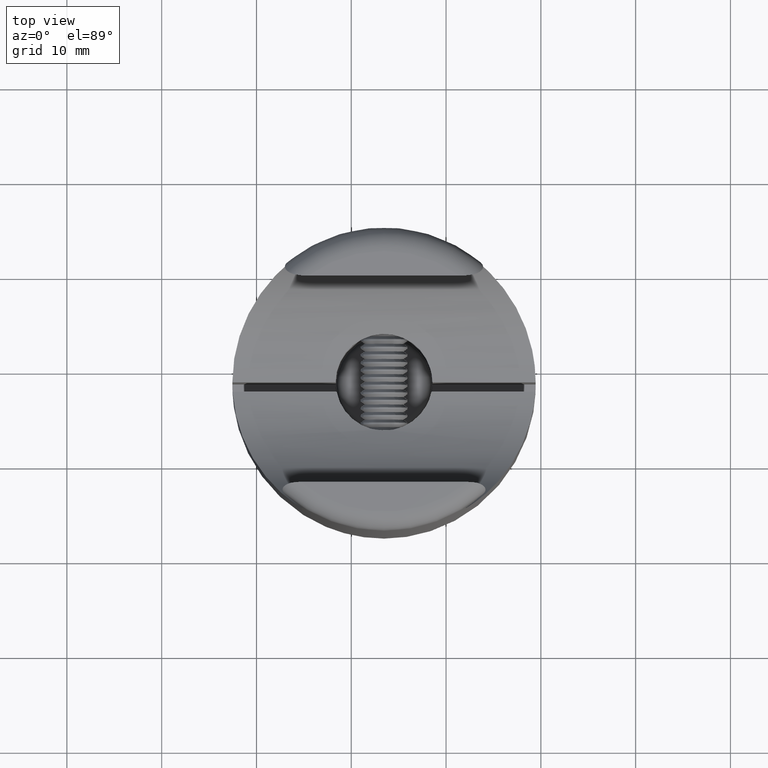
[diagram: clean part render]
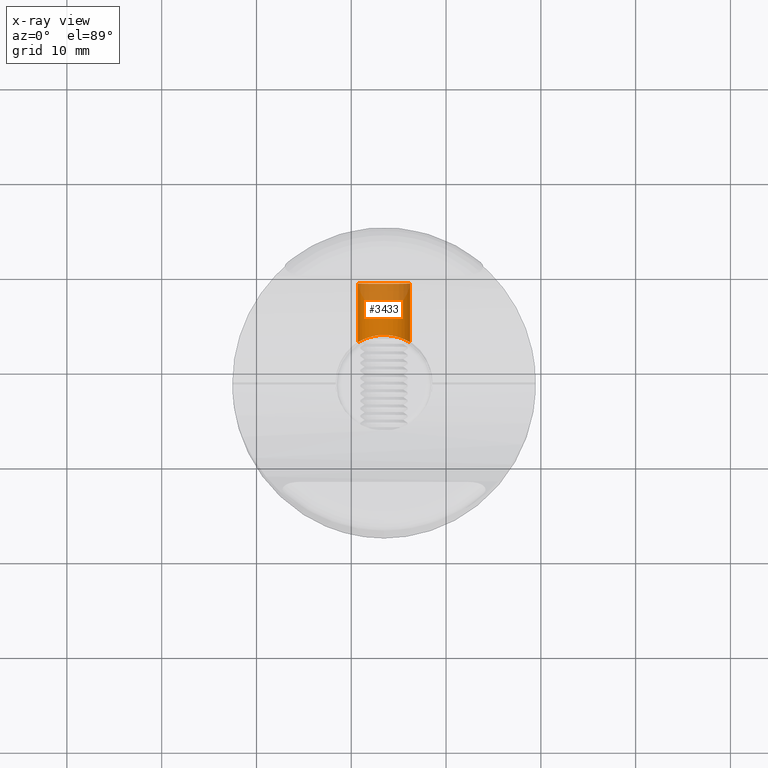
[diagram: x-ray — body ghosted, one internal face saturated and labeled with its STEP entity id]
A machine part, top view, then the same camera in x-ray: the body is ghosted and one INTERNAL B-rep face — a face not visible from any outside direction — is saturated and labeled: STEP entity #3433.
In plain terms, the highlighted cylindrical surface (edge-blend (fillet) strip) has radius 2.75 mm, axis along (-0, 1, 0).
Its self-contained STEP definition (entity closure, byte-faithful):
#150 = LINE ( 'NONE', #25176, #12335 ) ;
#473 = EDGE_CURVE ( 'NONE', #3907, #27079, #150, .T. ) ;
#1273 = ORIENTED_EDGE ( 'NONE', *, *, #20193, .T. ) ;
#2386 = CYLINDRICAL_SURFACE ( 'NONE', #4747, 2.750000000000000000 ) ;
#2676 = DIRECTION ( 'NONE',  ( -1.000000000000000000, -7.755437885725648845E-18, 0.000000000000000000 ) ) ;
#2739 = FACE_OUTER_BOUND ( 'NONE', #13343, .T. ) ;
#3358 = CARTESIAN_POINT ( 'NONE',  ( -1.683756366518901926, 4.816528503712306453, 7.818449940749074401 ) ) ;
#3433 = ADVANCED_FACE ( 'NONE', ( #2739 ), #2386, .F. ) ;
#3649 = ORIENTED_EDGE ( 'NONE', *, *, #21411, .F. ) ;
#3713 = CARTESIAN_POINT ( 'NONE',  ( 1.824306715840330329, 4.764447448298401611, 7.934723071478177125 ) ) ;
#3721 = CIRCLE ( 'NONE', #25961, 2.750000000000000000 ) ;
#3907 = VERTEX_POINT ( 'NONE', #20551 ) ;
#4090 = CARTESIAN_POINT ( 'NONE',  ( 0.7246548701174766460, 5.051447989332547905, 7.340946434861360004 ) ) ;
#4373 = CARTESIAN_POINT ( 'NONE',  ( -2.750000000000000000, 10.50000000000000000, 10.00000000000000178 ) ) ;
#4747 = AXIS2_PLACEMENT_3D ( 'NONE', #26480, #15637, #2676 ) ;
#5642 = CARTESIAN_POINT ( 'NONE',  ( -1.821678256465000478, 4.765454549843489040, 7.932414733163885678 ) ) ;
#7077 = LINE ( 'NONE', #10104, #15541 ) ;
#7624 = CARTESIAN_POINT ( 'NONE',  ( -2.749999999999999556, 4.295055296500848385, 9.814192940002406829 ) ) ;
#7903 = CARTESIAN_POINT ( 'NONE',  ( -0.1860933184264430829, 5.099926983910127554, 7.250135411683215736 ) ) ;
#8048 = B_SPLINE_CURVE_WITH_KNOTS ( 'NONE', 3,
 ( #18675, #7624, #22731, #16497, #9794, #14143, #16315, #5642, #3358, #20756, #22929, #10081, #9982, #25079, #7903, #12340, #21298, #4090, #14781, #25355, #14508, #12437, #3713, #8357, #25625, #8174, #27787, #18961, #27522, #21215 ),
 .UNSPECIFIED., .F., .F.,
 ( 4, 2, 2, 2, 2, 2, 2, 2, 2, 2, 2, 2, 2, 2, 4 ),
 ( 0.000000000000000000, 0.0005483944548025732144, 0.001096788909605146429, 0.002193577819210287654, 0.002741972274012856314, 0.003290366728815424108, 0.003838761183617992769, 0.004387155638420560562, 0.004935550093223128355, 0.005483944548025697883, 0.006032339002828264810, 0.006580733457630833470, 0.007677522367235969057, 0.008225916822038535983, 0.008774311276841103777 ),
 .UNSPECIFIED. ) ;
#8174 = CARTESIAN_POINT ( 'NONE',  ( 2.605287947488740929, 4.385063154340471669, 9.101805368133724983 ) ) ;
#8357 = CARTESIAN_POINT ( 'NONE',  ( 2.196828206780893300, 4.610440733175191319, 8.308757566263635042 ) ) ;
#8558 = VERTEX_POINT ( 'NONE', #26749 ) ;
#9601 = DIRECTION ( 'NONE',  ( -1.000000000000000000, 0.000000000000000000, 0.000000000000000000 ) ) ;
#9794 = CARTESIAN_POINT ( 'NONE',  ( -2.604842780820961767, 4.385339046499559856, 9.100309728850895397 ) ) ;
#9982 = CARTESIAN_POINT ( 'NONE',  ( -0.7247211290044720533, 5.051442110172703615, 7.340957426787968032 ) ) ;
#10081 = CARTESIAN_POINT ( 'NONE',  ( -0.9015878727411174021, 5.022520870669023196, 7.395809722354448112 ) ) ;
#10104 = CARTESIAN_POINT ( 'NONE',  ( -2.750000000000000000, -1.756050930162552715E-15, 10.00000000000000178 ) ) ;
#10284 = DIRECTION ( 'NONE',  ( -7.755437885725707393E-18, 1.000000000000000000, -0.000000000000000000 ) ) ;
#11457 = ORIENTED_EDGE ( 'NONE', *, *, #23526, .T. ) ;
#12335 = VECTOR ( 'NONE', #19471, 1000.000000000000000 ) ;
#12340 = CARTESIAN_POINT ( 'NONE',  ( 0.1820694667868929251, 5.100072222394652854, 7.249866060260782952 ) ) ;
#12346 = CARTESIAN_POINT ( 'NONE',  ( 2.750000000000000000, 10.50000000000000000, 10.00000000000000178 ) ) ;
#12437 = CARTESIAN_POINT ( 'NONE',  ( 1.686461781468816978, 4.815586405640530643, 7.820518799526145592 ) ) ;
#13343 = EDGE_LOOP ( 'NONE', ( #11457, #26189, #1273, #3649 ) ) ;
#14143 = CARTESIAN_POINT ( 'NONE',  ( -2.396529015932665985, 4.504693833990035756, 8.604384485979556629 ) ) ;
#14508 = CARTESIAN_POINT ( 'NONE',  ( 1.390902371898849577, 4.909115639541508536, 7.620991333471002882 ) ) ;
#14781 = CARTESIAN_POINT ( 'NONE',  ( 0.9004682300231109382, 5.022772697609988235, 7.395311177405186065 ) ) ;
#15541 = VECTOR ( 'NONE', #10284, 1000.000000000000000 ) ;
#15637 = DIRECTION ( 'NONE',  ( -7.755437885725707393E-18, 1.000000000000000000, -0.000000000000000000 ) ) ;
#15931 = DIRECTION ( 'NONE',  ( -7.755437885725707393E-18, 1.000000000000000000, 0.000000000000000000 ) ) ;
#16315 = CARTESIAN_POINT ( 'NONE',  ( -2.194430135776304525, 4.611588807125182932, 8.305698255310641542 ) ) ;
#16497 = CARTESIAN_POINT ( 'NONE',  ( -2.659276096946619372, 4.352017207419354605, 9.276287774262147678 ) ) ;
#18675 = CARTESIAN_POINT ( 'NONE',  ( -2.750000000000000000, 4.295055296500849273, 10.00000000000000178 ) ) ;
#18961 = CARTESIAN_POINT ( 'NONE',  ( 2.731881445420052845, 4.306813022838761995, 9.635611625049699924 ) ) ;
#19471 = DIRECTION ( 'NONE',  ( -7.755437885725707393E-18, 1.000000000000000000, -0.000000000000000000 ) ) ;
#20193 = EDGE_CURVE ( 'NONE', #27079, #21074, #3721, .T. ) ;
#20551 = CARTESIAN_POINT ( 'NONE',  ( 2.750000000000000000, 4.295055296500849273, 10.00000000000000178 ) ) ;
#20756 = CARTESIAN_POINT ( 'NONE',  ( -1.388414425852497081, 4.909815445711855020, 7.619558539914215167 ) ) ;
#21074 = VERTEX_POINT ( 'NONE', #4373 ) ;
#21215 = CARTESIAN_POINT ( 'NONE',  ( 2.750000000000000000, 4.295055296500849273, 10.00000000000000178 ) ) ;
#21298 = CARTESIAN_POINT ( 'NONE',  ( 0.3675460323002865959, 5.089907797186225658, 7.268590023961654545 ) ) ;
#21411 = EDGE_CURVE ( 'NONE', #8558, #21074, #7077, .T. ) ;
#22731 = CARTESIAN_POINT ( 'NONE',  ( -2.731373409940114794, 4.307133899583098113, 9.632429542881661533 ) ) ;
#22929 = CARTESIAN_POINT ( 'NONE',  ( -1.232199464784434761, 4.951793722234873130, 7.534974204304865530 ) ) ;
#23526 = EDGE_CURVE ( 'NONE', #8558, #3907, #8048, .T. ) ;
#25079 = CARTESIAN_POINT ( 'NONE',  ( -0.3674092440700414963, 5.089921271947479120, 7.268564742053827743 ) ) ;
#25176 = CARTESIAN_POINT ( 'NONE',  ( 2.750000000000000000, -1.713396021791061276E-15, 10.00000000000000178 ) ) ;
#25355 = CARTESIAN_POINT ( 'NONE',  ( 1.234023473256762982, 4.951391185574877341, 7.535769295848574245 ) ) ;
#25625 = CARTESIAN_POINT ( 'NONE',  ( 2.398638724541282130, 4.503526273562643567, 8.608544713867892995 ) ) ;
#25961 = AXIS2_PLACEMENT_3D ( 'NONE', #26694, #15931, #9601 ) ;
#26189 = ORIENTED_EDGE ( 'NONE', *, *, #473, .T. ) ;
#26480 = CARTESIAN_POINT ( 'NONE',  ( 2.055191039717312713E-16, -1.734723475976807094E-15, 10.00000000000000178 ) ) ;
#26694 = CARTESIAN_POINT ( 'NONE',  ( 1.240870061716113183E-16, 10.50000000000000000, 10.00000000000000178 ) ) ;
#26749 = CARTESIAN_POINT ( 'NONE',  ( -2.750000000000000000, 4.295055296500849273, 10.00000000000000178 ) ) ;
#27079 = VERTEX_POINT ( 'NONE', #12346 ) ;
#27522 = CARTESIAN_POINT ( 'NONE',  ( 2.750000000000000444, 4.295055296500851938, 9.816822102166778308 ) ) ;
#27787 = CARTESIAN_POINT ( 'NONE',  ( 2.659558457274631138, 4.351845982782807987, 9.277017336329386410 ) ) ;